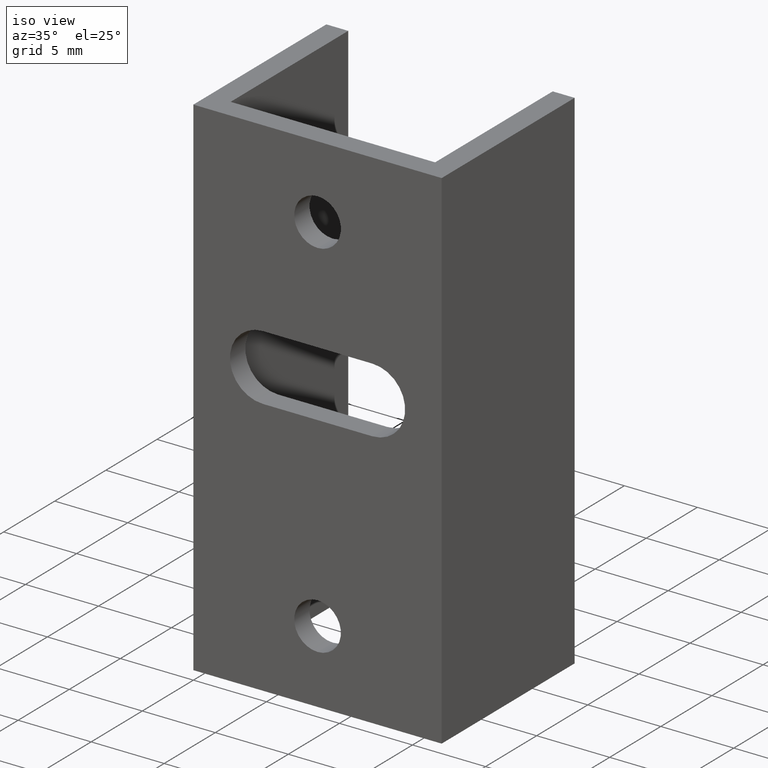
[diagram: clean part render]
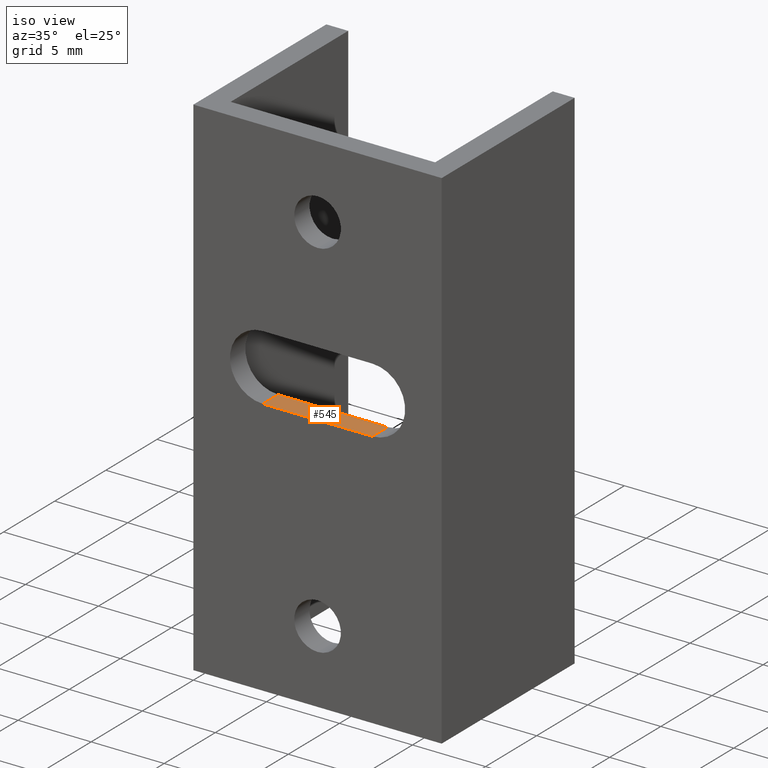
[diagram: same view with one face highlighted and labeled with its STEP entity id]
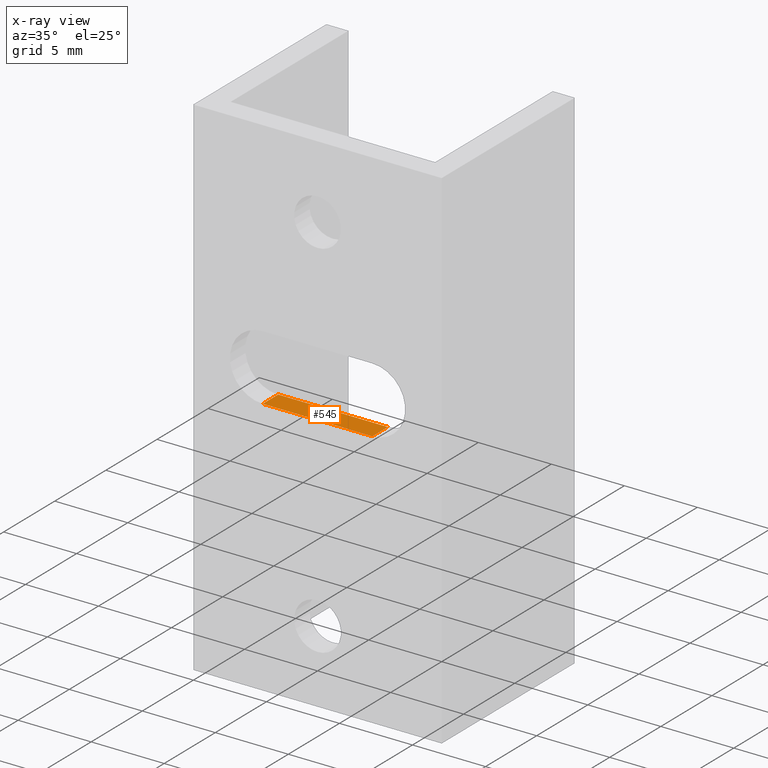
[diagram: x-ray of the same camera — body ghosted, the highlighted face saturated]
A machine part, iso view. The second image highlights one B-rep face of the part: STEP entity #545.
The next image is the same camera in x-ray: the body ghosted, the highlighted face saturated — about 0% of this face is hidden behind the body in this view.
In plain terms, the highlighted planar face has unit normal (0, 0, -1).
Its self-contained STEP definition (entity closure, byte-faithful):
#4 = CARTESIAN_POINT ( 'NONE',  ( 4.750000000000013323, 1.499999999999993783, -17.25000000000000000 ) ) ;
#57 = VERTEX_POINT ( 'NONE', #282 ) ;
#69 = DIRECTION ( 'NONE',  ( 0.0000000000000000000, 0.0000000000000000000, -1.000000000000000000 ) ) ;
#74 = LINE ( 'NONE', #333, #555 ) ;
#77 = ORIENTED_EDGE ( 'NONE', *, *, #96, .F. ) ;
#78 = CARTESIAN_POINT ( 'NONE',  ( 12.25000000000001066, 1.499999999999993783, -17.25000000000000000 ) ) ;
#96 = EDGE_CURVE ( 'NONE', #57, #331, #171, .T. ) ;
#131 = VECTOR ( 'NONE', #376, 1000.000000000000000 ) ;
#171 = LINE ( 'NONE', #481, #131 ) ;
#178 = AXIS2_PLACEMENT_3D ( 'NONE', #222, #69, #276 ) ;
#192 = LINE ( 'NONE', #232, #270 ) ;
#222 = CARTESIAN_POINT ( 'NONE',  ( 4.750000000000013323, -6.288372600415925717E-15, -17.25000000000000000 ) ) ;
#232 = CARTESIAN_POINT ( 'NONE',  ( 4.750000000000013323, -6.288372600415925717E-15, -17.25000000000000000 ) ) ;
#249 = ORIENTED_EDGE ( 'NONE', *, *, #429, .T. ) ;
#270 = VECTOR ( 'NONE', #336, 1000.000000000000000 ) ;
#276 = DIRECTION ( 'NONE',  ( -1.000000000000000000, 0.0000000000000000000, -0.0000000000000000000 ) ) ;
#282 = CARTESIAN_POINT ( 'NONE',  ( 4.750000000000013323, -6.288372600415925717E-15, -17.25000000000000000 ) ) ;
#310 = VECTOR ( 'NONE', #518, 1000.000000000000000 ) ;
#323 = FACE_OUTER_BOUND ( 'NONE', #548, .T. ) ;
#331 = VERTEX_POINT ( 'NONE', #417 ) ;
#333 = CARTESIAN_POINT ( 'NONE',  ( 12.25000000000001066, -6.288372600415925717E-15, -17.25000000000000000 ) ) ;
#336 = DIRECTION ( 'NONE',  ( -1.000000000000000000, -0.0000000000000000000, -0.0000000000000000000 ) ) ;
#365 = EDGE_CURVE ( 'NONE', #646, #331, #459, .T. ) ;
#371 = VERTEX_POINT ( 'NONE', #608 ) ;
#376 = DIRECTION ( 'NONE',  ( -0.0000000000000000000, 1.000000000000000000, -0.0000000000000000000 ) ) ;
#417 = CARTESIAN_POINT ( 'NONE',  ( 4.750000000000013323, 1.499999999999993783, -17.25000000000000000 ) ) ;
#429 = EDGE_CURVE ( 'NONE', #371, #646, #74, .T. ) ;
#459 = LINE ( 'NONE', #4, #310 ) ;
#474 = DIRECTION ( 'NONE',  ( -0.0000000000000000000, 1.000000000000000000, -0.0000000000000000000 ) ) ;
#481 = CARTESIAN_POINT ( 'NONE',  ( 4.750000000000013323, -6.288372600415925717E-15, -17.25000000000000000 ) ) ;
#497 = ORIENTED_EDGE ( 'NONE', *, *, #628, .F. ) ;
#518 = DIRECTION ( 'NONE',  ( -1.000000000000000000, -0.0000000000000000000, -0.0000000000000000000 ) ) ;
#522 = PLANE ( 'NONE',  #178 ) ;
#545 = ADVANCED_FACE ( 'NONE', ( #323 ), #522, .F. ) ;
#548 = EDGE_LOOP ( 'NONE', ( #627, #77, #497, #249 ) ) ;
#555 = VECTOR ( 'NONE', #474, 1000.000000000000000 ) ;
#608 = CARTESIAN_POINT ( 'NONE',  ( 12.25000000000001066, -6.288372600415925717E-15, -17.25000000000000000 ) ) ;
#627 = ORIENTED_EDGE ( 'NONE', *, *, #365, .T. ) ;
#628 = EDGE_CURVE ( 'NONE', #371, #57, #192, .T. ) ;
#646 = VERTEX_POINT ( 'NONE', #78 ) ;